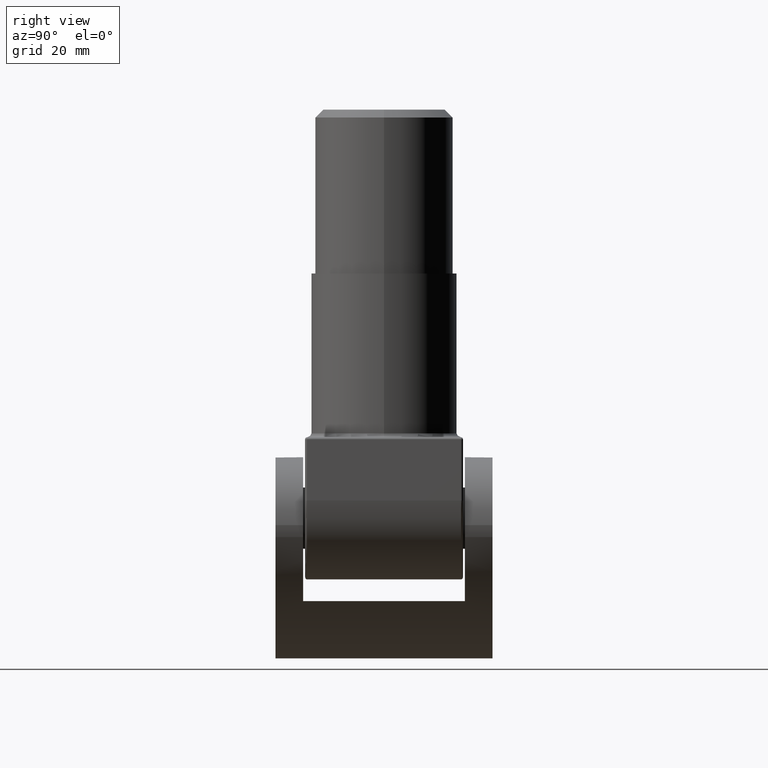
[diagram: clean part render]
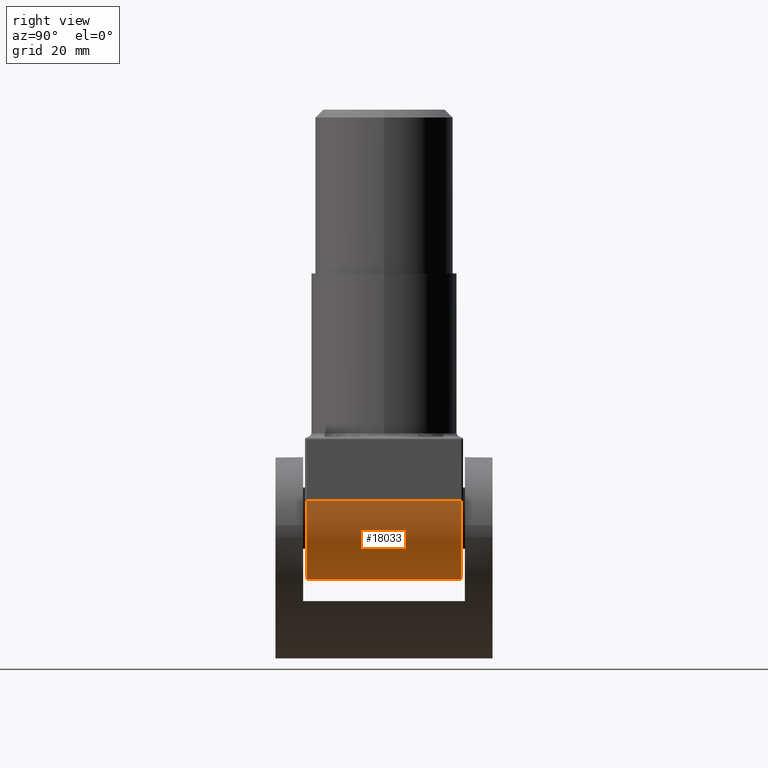
[diagram: same view with one face highlighted and labeled with its STEP entity id]
A machine part, right view. The second image highlights one B-rep face of the part: STEP entity #18033.
In plain terms, the highlighted cylindrical surface (partial cylindrical patch) has radius 20 mm, axis along (-0, -1, -0).
Its self-contained STEP definition (entity closure, byte-faithful):
#442 = DIRECTION ( 'NONE',  ( 0.000000000000000000, 1.000000000000000000, 0.000000000000000000 ) ) ;
#1309 = DIRECTION ( 'NONE',  ( -0.000000000000000000, -1.000000000000000000, -0.000000000000000000 ) ) ;
#1354 = DIRECTION ( 'NONE',  ( -0.000000000000000000, -1.000000000000000000, -0.000000000000000000 ) ) ;
#4270 = DIRECTION ( 'NONE',  ( 0.000000000000000000, 0.000000000000000000, 1.000000000000000000 ) ) ;
#4787 = AXIS2_PLACEMENT_3D ( 'NONE', #15039, #11467, #16921 ) ;
#4827 = AXIS2_PLACEMENT_3D ( 'NONE', #14072, #442, #4270 ) ;
#7300 = VECTOR ( 'NONE', #24287, 1000.000000000000000 ) ;
#7878 = VERTEX_POINT ( 'NONE', #14503 ) ;
#8067 = EDGE_CURVE ( 'NONE', #15492, #17746, #11696, .T. ) ;
#8293 = FACE_OUTER_BOUND ( 'NONE', #25154, .T. ) ;
#8488 = CARTESIAN_POINT ( 'NONE',  ( 20.00000000000000355, 19.50000000000000355, -15.99999999999998934 ) ) ;
#8879 = ORIENTED_EDGE ( 'NONE', *, *, #13502, .T. ) ;
#10460 = EDGE_CURVE ( 'NONE', #7878, #19978, #11594, .T. ) ;
#11452 = CARTESIAN_POINT ( 'NONE',  ( 0.000000000000000000, -19.49999999999999645, -36.00000000000000000 ) ) ;
#11465 = ORIENTED_EDGE ( 'NONE', *, *, #25031, .F. ) ;
#11467 = DIRECTION ( 'NONE',  ( -0.000000000000000000, -1.000000000000000000, -0.000000000000000000 ) ) ;
#11594 = CIRCLE ( 'NONE', #4827, 20.00000000000000355 ) ;
#11696 = CIRCLE ( 'NONE', #4787, 20.00000000000000355 ) ;
#12212 = CARTESIAN_POINT ( 'NONE',  ( 0.000000000000000000, 20.00000000000000355, -36.00000000000000000 ) ) ;
#13221 = ORIENTED_EDGE ( 'NONE', *, *, #10460, .T. ) ;
#13502 = EDGE_CURVE ( 'NONE', #17746, #7878, #18315, .T. ) ;
#14072 = CARTESIAN_POINT ( 'NONE',  ( 0.000000000000000000, -19.49999999999999645, -15.99999999999999289 ) ) ;
#14503 = CARTESIAN_POINT ( 'NONE',  ( 20.00000000000000355, -19.49999999999999645, -15.99999999999998934 ) ) ;
#15039 = CARTESIAN_POINT ( 'NONE',  ( 0.000000000000000000, 19.50000000000000355, -15.99999999999999289 ) ) ;
#15114 = DIRECTION ( 'NONE',  ( 0.000000000000000000, 0.000000000000000000, -1.000000000000000000 ) ) ;
#15492 = VERTEX_POINT ( 'NONE', #20641 ) ;
#15807 = ORIENTED_EDGE ( 'NONE', *, *, #8067, .T. ) ;
#16257 = LINE ( 'NONE', #12212, #7300 ) ;
#16921 = DIRECTION ( 'NONE',  ( 0.000000000000000000, 0.000000000000000000, 1.000000000000000000 ) ) ;
#17746 = VERTEX_POINT ( 'NONE', #8488 ) ;
#18033 = ADVANCED_FACE ( 'NONE', ( #8293 ), #23687, .T. ) ;
#18315 = LINE ( 'NONE', #19167, #22939 ) ;
#18859 = CARTESIAN_POINT ( 'NONE',  ( 0.000000000000000000, 20.00000000000000355, -15.99999999999999289 ) ) ;
#19167 = CARTESIAN_POINT ( 'NONE',  ( 20.00000000000000355, 20.00000000000000355, -15.99999999999998934 ) ) ;
#19978 = VERTEX_POINT ( 'NONE', #11452 ) ;
#20641 = CARTESIAN_POINT ( 'NONE',  ( 0.000000000000000000, 19.50000000000000355, -36.00000000000000000 ) ) ;
#22365 = AXIS2_PLACEMENT_3D ( 'NONE', #18859, #1309, #15114 ) ;
#22939 = VECTOR ( 'NONE', #1354, 1000.000000000000000 ) ;
#23687 = CYLINDRICAL_SURFACE ( 'NONE', #22365, 20.00000000000000355 ) ;
#24287 = DIRECTION ( 'NONE',  ( -0.000000000000000000, -1.000000000000000000, -0.000000000000000000 ) ) ;
#25031 = EDGE_CURVE ( 'NONE', #15492, #19978, #16257, .T. ) ;
#25154 = EDGE_LOOP ( 'NONE', ( #11465, #15807, #8879, #13221 ) ) ;